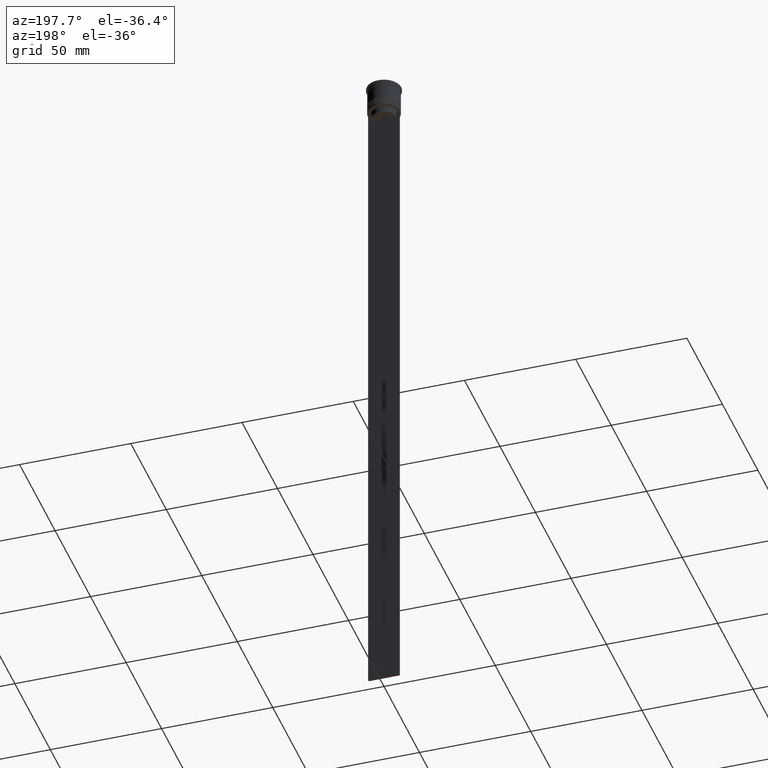
[diagram: clean part render]
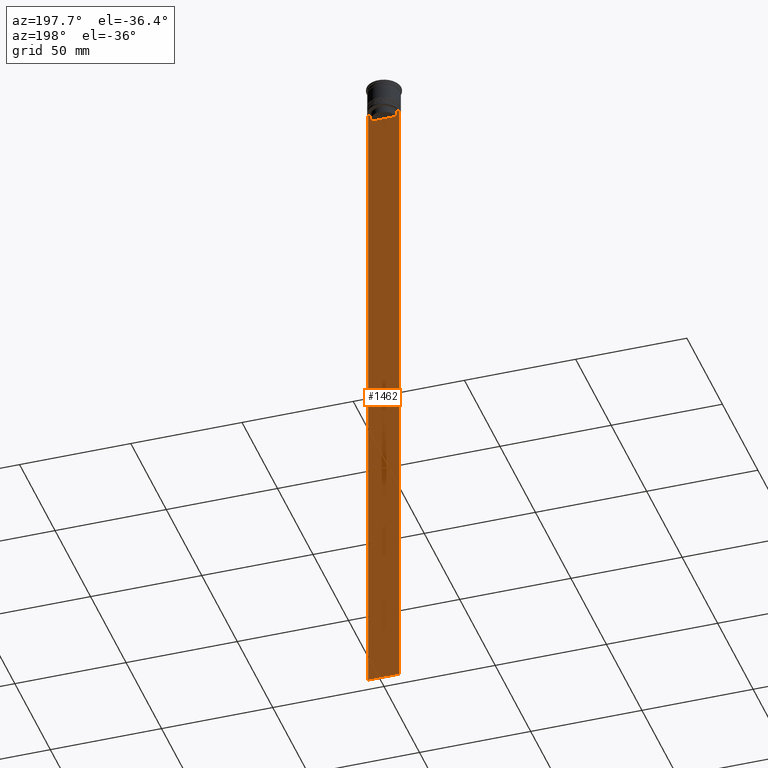
[diagram: same view with one face highlighted and labeled with its STEP entity id]
A machine part, auxiliary view. The second image highlights one B-rep face of the part: STEP entity #1462.
In plain terms, the highlighted planar face has unit normal (0, -1, -0).
Its self-contained STEP definition (entity closure, byte-faithful):
#38 = LINE ( 'NONE', #589, #984 ) ;
#42 = FACE_OUTER_BOUND ( 'NONE', #2161, .T. ) ;
#126 = LINE ( 'NONE', #858, #617 ) ;
#155 = VECTOR ( 'NONE', #1938, 1000.000000000000000 ) ;
#175 = VERTEX_POINT ( 'NONE', #935 ) ;
#193 = LINE ( 'NONE', #1973, #2035 ) ;
#273 = EDGE_CURVE ( 'NONE', #175, #1193, #38, .T. ) ;
#277 = VERTEX_POINT ( 'NONE', #452 ) ;
#284 = EDGE_CURVE ( 'NONE', #308, #1454, #1737, .T. ) ;
#291 = CARTESIAN_POINT ( 'NONE',  ( 5.962396079681187011, 0.4999999999999978351, -12.66669137279835411 ) ) ;
#299 = CARTESIAN_POINT ( 'NONE',  ( -6.999999999999987566, 0.4999999999999978351, -312.5000000000000000 ) ) ;
#308 = VERTEX_POINT ( 'NONE', #2093 ) ;
#331 = CARTESIAN_POINT ( 'NONE',  ( -6.999999999999987566, 0.4999999999999978351, 1.535668847618198329 ) ) ;
#336 = VERTEX_POINT ( 'NONE', #1718 ) ;
#368 = LINE ( 'NONE', #2111, #155 ) ;
#401 = EDGE_CURVE ( 'NONE', #1193, #308, #1628, .T. ) ;
#452 = CARTESIAN_POINT ( 'NONE',  ( -5.627832620112292794, 0.4999999999999978351, -13.00000000000000000 ) ) ;
#536 = CARTESIAN_POINT ( 'NONE',  ( -6.999999999999987566, 0.4999999999999980571, -12.50000000000000000 ) ) ;
#553 = PLANE ( 'NONE',  #763 ) ;
#583 = EDGE_CURVE ( 'NONE', #1789, #1271, #1487, .T. ) ;
#587 = ORIENTED_EDGE ( 'NONE', *, *, #401, .T. ) ;
#589 = CARTESIAN_POINT ( 'NONE',  ( 5.627832620112292794, 0.4999999999999978351, 0.000000000000000000 ) ) ;
#617 = VECTOR ( 'NONE', #1572, 1000.000000000000000 ) ;
#621 = ORIENTED_EDGE ( 'NONE', *, *, #1719, .T. ) ;
#626 = ORIENTED_EDGE ( 'NONE', *, *, #753, .T. ) ;
#639 = CARTESIAN_POINT ( 'NONE',  ( -5.962396146966409738, 0.4999999999999978351, -12.66669130573587054 ) ) ;
#655 = DIRECTION ( 'NONE',  ( 0.000000000000000000, 0.000000000000000000, -1.000000000000000000 ) ) ;
#667 = DIRECTION ( 'NONE',  ( 1.000000000000000000, 0.000000000000000000, 0.000000000000000000 ) ) ;
#707 = CARTESIAN_POINT ( 'NONE',  ( 7.000000000000012434, 0.4999999999999978351, -312.5000000000000000 ) ) ;
#716 = DIRECTION ( 'NONE',  ( 1.000000000000000000, 0.000000000000000000, 0.000000000000000000 ) ) ;
#753 = EDGE_CURVE ( 'NONE', #1454, #1789, #2050, .T. ) ;
#760 = VECTOR ( 'NONE', #1807, 1000.000000000000000 ) ;
#763 = AXIS2_PLACEMENT_3D ( 'NONE', #1272, #1986, #1651 ) ;
#858 = CARTESIAN_POINT ( 'NONE',  ( -5.627832620112292794, 0.4999999999999978351, 0.000000000000000000 ) ) ;
#906 = CARTESIAN_POINT ( 'NONE',  ( 7.000000000000012434, 0.4999999999999978351, -12.50000000000000000 ) ) ;
#935 = CARTESIAN_POINT ( 'NONE',  ( 5.627832620112292794, 0.4999999999999978351, -15.50000000000000000 ) ) ;
#984 = VECTOR ( 'NONE', #1362, 1000.000000000000000 ) ;
#1001 = CARTESIAN_POINT ( 'NONE',  ( 7.000000000000012434, 0.4999999999999978351, 1.535668847618198329 ) ) ;
#1023 = CARTESIAN_POINT ( 'NONE',  ( 6.129641098791995368, 0.4999999999999978351, -12.50000000000000000 ) ) ;
#1027 = VECTOR ( 'NONE', #1047, 1000.000000000000000 ) ;
#1047 = DIRECTION ( 'NONE',  ( 0.000000000000000000, 0.000000000000000000, -1.000000000000000000 ) ) ;
#1130 = CARTESIAN_POINT ( 'NONE',  ( 7.000000000000012434, 0.4999999999999978351, -312.5000000000000000 ) ) ;
#1177 = VECTOR ( 'NONE', #655, 1000.000000000000000 ) ;
#1192 = ORIENTED_EDGE ( 'NONE', *, *, #1199, .T. ) ;
#1193 = VERTEX_POINT ( 'NONE', #1701 ) ;
#1199 = EDGE_CURVE ( 'NONE', #336, #277, #2205, .T. ) ;
#1271 = VERTEX_POINT ( 'NONE', #299 ) ;
#1272 = CARTESIAN_POINT ( 'NONE',  ( 7.000000000000012434, 0.4999999999999978351, 1.535668847618198329 ) ) ;
#1362 = DIRECTION ( 'NONE',  ( -0.000000000000000000, -0.000000000000000000, 1.000000000000000000 ) ) ;
#1416 = CARTESIAN_POINT ( 'NONE',  ( -5.627832620112292794, 0.4999999999999978351, -15.50000000000000000 ) ) ;
#1454 = VERTEX_POINT ( 'NONE', #906 ) ;
#1462 = ADVANCED_FACE ( 'NONE', ( #42 ), #553, .F. ) ;
#1487 = LINE ( 'NONE', #1130, #760 ) ;
#1503 = CARTESIAN_POINT ( 'NONE',  ( -5.795128834036803234, 0.4999999999999978351, -12.83336016107156574 ) ) ;
#1516 = CARTESIAN_POINT ( 'NONE',  ( -5.627832620112292794, 0.4999999999999978351, -13.00000000000000000 ) ) ;
#1535 = CARTESIAN_POINT ( 'NONE',  ( 5.627832620112292794, 0.4999999999999978351, -13.00000000000000000 ) ) ;
#1572 = DIRECTION ( 'NONE',  ( 0.000000000000000000, 0.000000000000000000, -1.000000000000000000 ) ) ;
#1599 = ORIENTED_EDGE ( 'NONE', *, *, #2170, .T. ) ;
#1609 = ORIENTED_EDGE ( 'NONE', *, *, #1743, .F. ) ;
#1624 = VECTOR ( 'NONE', #667, 1000.000000000000000 ) ;
#1628 = B_SPLINE_CURVE_WITH_KNOTS ( 'NONE', 3,
 ( #1535, #2242, #291, #1023 ),
 .UNSPECIFIED., .F., .F.,
 ( 4, 4 ),
 ( 0.02651134470867373347, 0.02721991123504337307 ),
 .UNSPECIFIED. ) ;
#1651 = DIRECTION ( 'NONE',  ( 0.000000000000000000, 0.000000000000000000, -1.000000000000000000 ) ) ;
#1654 = EDGE_CURVE ( 'NONE', #1721, #175, #193, .T. ) ;
#1686 = VERTEX_POINT ( 'NONE', #536 ) ;
#1701 = CARTESIAN_POINT ( 'NONE',  ( 5.627832620112292794, 0.4999999999999978351, -13.00000000000000000 ) ) ;
#1710 = ORIENTED_EDGE ( 'NONE', *, *, #1654, .T. ) ;
#1713 = CARTESIAN_POINT ( 'NONE',  ( -6.129641098791995368, 0.4999999999999978351, -12.50000000000000000 ) ) ;
#1718 = CARTESIAN_POINT ( 'NONE',  ( -6.129641098791995368, 0.4999999999999978351, -12.50000000000000000 ) ) ;
#1719 = EDGE_CURVE ( 'NONE', #1686, #336, #368, .T. ) ;
#1721 = VERTEX_POINT ( 'NONE', #1416 ) ;
#1737 = LINE ( 'NONE', #2278, #1624 ) ;
#1743 = EDGE_CURVE ( 'NONE', #1686, #1271, #1808, .T. ) ;
#1789 = VERTEX_POINT ( 'NONE', #707 ) ;
#1807 = DIRECTION ( 'NONE',  ( -1.000000000000000000, 0.000000000000000000, 0.000000000000000000 ) ) ;
#1808 = LINE ( 'NONE', #331, #1027 ) ;
#1938 = DIRECTION ( 'NONE',  ( 1.000000000000000000, 0.000000000000000000, 0.000000000000000000 ) ) ;
#1973 = CARTESIAN_POINT ( 'NONE',  ( 0.000000000000000000, 0.4999999999999978351, -15.50000000000000000 ) ) ;
#1986 = DIRECTION ( 'NONE',  ( 0.000000000000000000, -1.000000000000000000, -0.000000000000000000 ) ) ;
#2035 = VECTOR ( 'NONE', #716, 1000.000000000000000 ) ;
#2050 = LINE ( 'NONE', #1001, #1177 ) ;
#2078 = ORIENTED_EDGE ( 'NONE', *, *, #583, .T. ) ;
#2093 = CARTESIAN_POINT ( 'NONE',  ( 6.129641098791995368, 0.4999999999999978351, -12.50000000000000000 ) ) ;
#2111 = CARTESIAN_POINT ( 'NONE',  ( 7.000000000000012434, 0.4999999999999978351, -12.50000000000000000 ) ) ;
#2132 = ORIENTED_EDGE ( 'NONE', *, *, #284, .T. ) ;
#2161 = EDGE_LOOP ( 'NONE', ( #621, #1192, #1599, #1710, #2200, #587, #2132, #626, #2078, #1609 ) ) ;
#2170 = EDGE_CURVE ( 'NONE', #277, #1721, #126, .T. ) ;
#2200 = ORIENTED_EDGE ( 'NONE', *, *, #273, .T. ) ;
#2205 = B_SPLINE_CURVE_WITH_KNOTS ( 'NONE', 3,
 ( #1713, #639, #1503, #1516 ),
 .UNSPECIFIED., .F., .F.,
 ( 4, 4 ),
 ( 0.01045365750109871796, 0.01116204421161398619 ),
 .UNSPECIFIED. ) ;
#2242 = CARTESIAN_POINT ( 'NONE',  ( 5.795128760752291441, 0.4999999999999978351, -12.83336023406855020 ) ) ;
#2278 = CARTESIAN_POINT ( 'NONE',  ( 7.000000000000012434, 0.4999999999999978351, -12.50000000000000000 ) ) ;